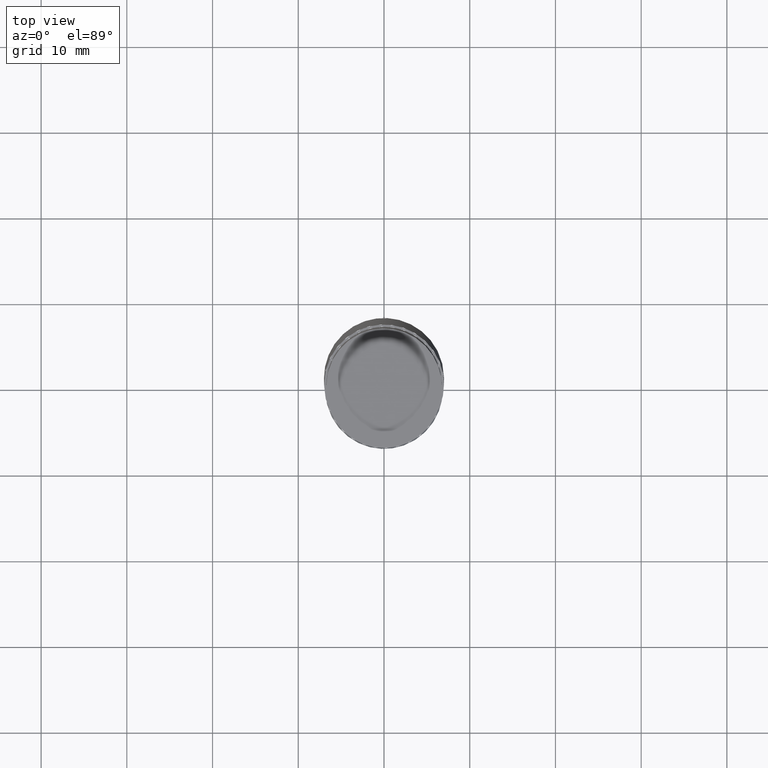
[diagram: clean part render]
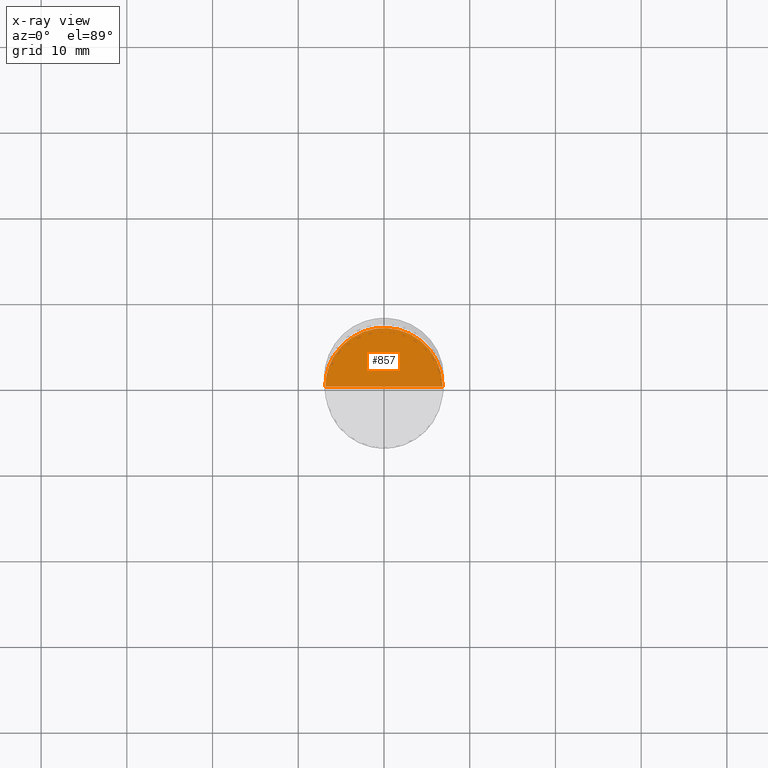
[diagram: x-ray — body ghosted, one internal face saturated and labeled with its STEP entity id]
A machine part, top view, then the same camera in x-ray: the body is ghosted and one INTERNAL B-rep face — a face not visible from any outside direction — is saturated and labeled: STEP entity #857.
In plain terms, the highlighted face is a freeform B-spline surface patch.
Its self-contained STEP definition (entity closure, byte-faithful):
#625=CARTESIAN_POINT('',(6.85,0.0,-15.25));
#626=CARTESIAN_POINT('',(6.85,6.85,-15.25));
#627=CARTESIAN_POINT('',(0.0,6.85,-15.25));
#628=CARTESIAN_POINT('',(-6.85,6.85,-15.25));
#629=CARTESIAN_POINT('',(-6.85,0.0,-15.25));
#630=CARTESIAN_POINT('',(0.0,0.0,-15.25));
#842=(
BOUNDED_SURFACE()
B_SPLINE_SURFACE(1,2,(
(#630,#630,#630,#630,#630),
(#625,#626,#627,#628,#629)
), .UNSPECIFIED.,.F.,.F.,.F.)
B_SPLINE_SURFACE_WITH_KNOTS((2,2),(3,2,3),(
0.0,1.0),(
0.0,0.5,1.0), .UNSPECIFIED.)
GEOMETRIC_REPRESENTATION_ITEM()
RATIONAL_B_SPLINE_SURFACE(((1.0,0.707106781187,1.0,0.707106781187,1.0),
(1.0,0.707106781187,1.0,0.707106781187,1.0)
))
REPRESENTATION_ITEM('')
SURFACE()
);
#843=(
BOUNDED_CURVE()
B_SPLINE_CURVE(1,(#629,#630),.UNSPECIFIED.,.F.,.F.)
B_SPLINE_CURVE_WITH_KNOTS((2,2),
(0.0,1.0),.UNSPECIFIED.)
CURVE()
GEOMETRIC_REPRESENTATION_ITEM()
RATIONAL_B_SPLINE_CURVE((1.0,1.0))
REPRESENTATION_ITEM('')
);
#844=(
BOUNDED_CURVE()
B_SPLINE_CURVE(1,(#630,#625),.UNSPECIFIED.,.F.,.F.)
B_SPLINE_CURVE_WITH_KNOTS((2,2),
(0.0,1.0),.UNSPECIFIED.)
CURVE()
GEOMETRIC_REPRESENTATION_ITEM()
RATIONAL_B_SPLINE_CURVE((1.0,1.0))
REPRESENTATION_ITEM('')
);
#845=(
BOUNDED_CURVE()
B_SPLINE_CURVE(2,(#625,#626,#627,#628,#629),.UNSPECIFIED.,.F.,.F.)
B_SPLINE_CURVE_WITH_KNOTS((3,2,3),
(0.0,0.5,1.0),.UNSPECIFIED.)
CURVE()
GEOMETRIC_REPRESENTATION_ITEM()
RATIONAL_B_SPLINE_CURVE((1.0,0.707106781187,1.0,0.707106781187,1.0))
REPRESENTATION_ITEM('')
);
#846=VERTEX_POINT('',#625);
#847=VERTEX_POINT('',#629);
#848=VERTEX_POINT('',#630);
#849=EDGE_CURVE('',#847,#848,#843,.T.);
#850=EDGE_CURVE('',#848,#846,#844,.T.);
#851=EDGE_CURVE('',#846,#847,#845,.T.);
#852=ORIENTED_EDGE('',*,*,#849,.T.);
#853=ORIENTED_EDGE('',*,*,#850,.T.);
#854=ORIENTED_EDGE('',*,*,#851,.T.);
#855=EDGE_LOOP('',(#852,#853,#854));
#856=FACE_OUTER_BOUND('',#855,.T.);
#857=ADVANCED_FACE('',(#856),#842,.T.);